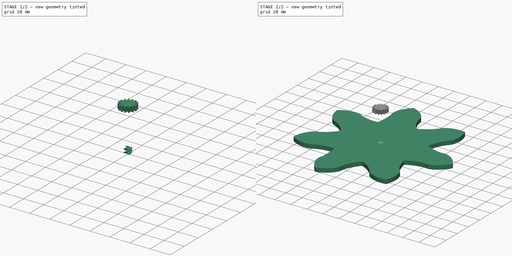
[diagram: build sequence overview — one tinted view per stage of 2, left to right]
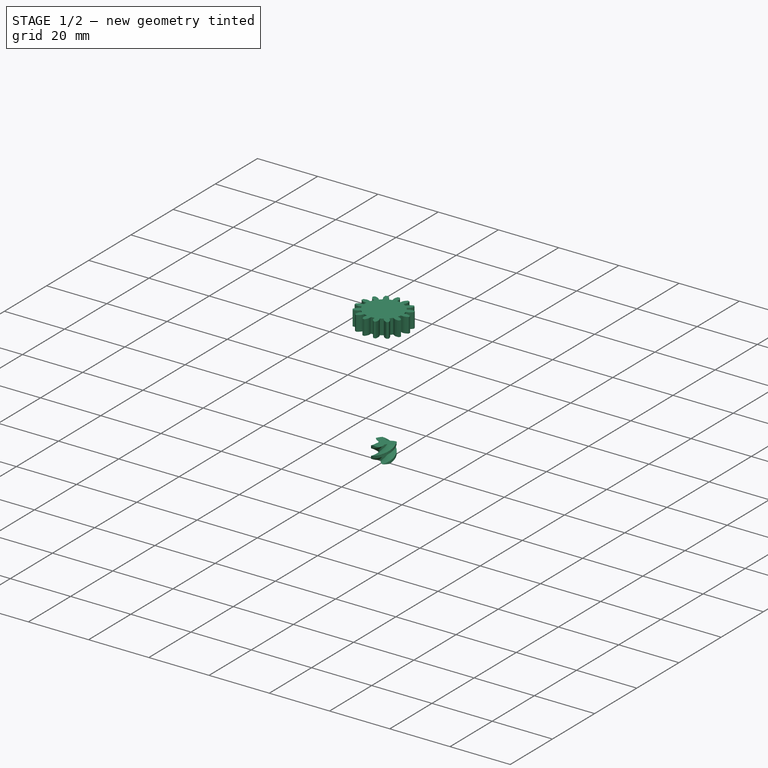
[diagram: stage 1 of 2 — iso view after this stage's code; geometry added in this stage tinted green]
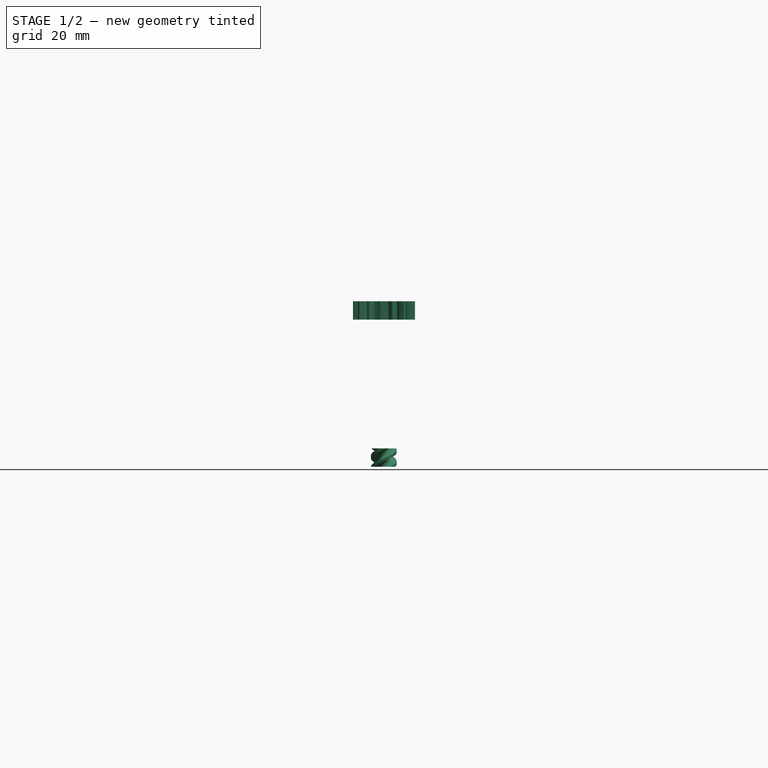
[diagram: stage 1 of 2 — front view after this stage's code; geometry added in this stage tinted green]
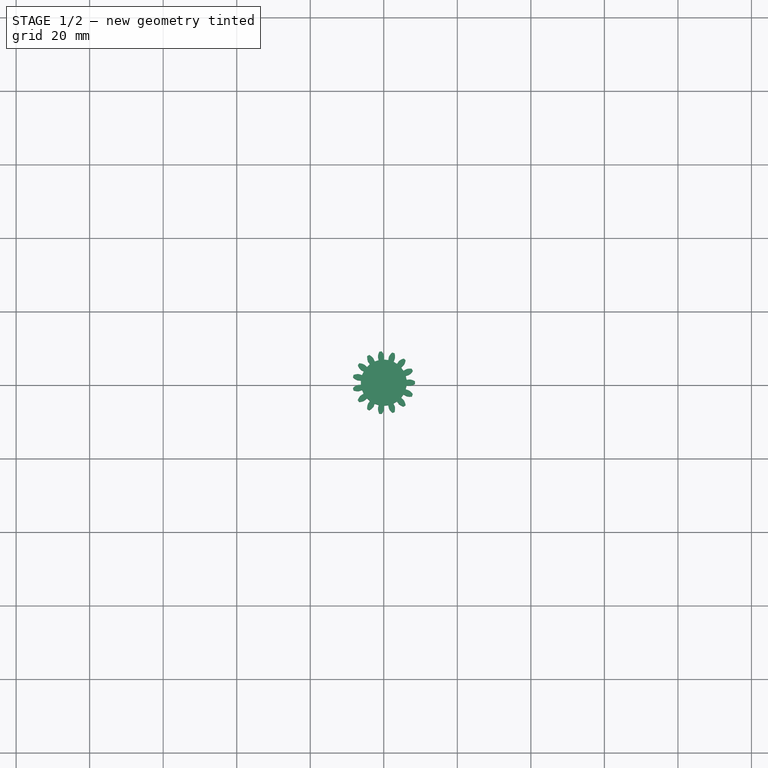
[diagram: stage 1 of 2 — top view after this stage's code; geometry added in this stage tinted green]
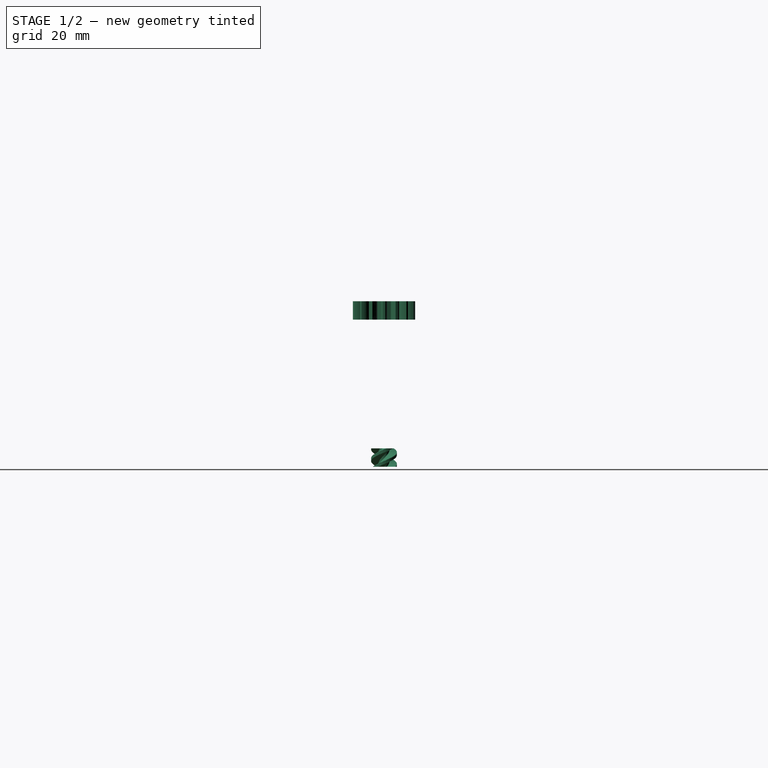
[diagram: stage 1 of 2 — right view after this stage's code; geometry added in this stage tinted green]
FCSTD DOCUMENT  (FreeCAD 0.19R)
Label: cycloid_test
License: All rights reserved
LicenseURL: http://en.wikipedia.org/wiki/All_rights_reserved
objects: Part::FeaturePython×3, Sketcher::SketchObject×2, PartDesign::Body×1
note: 6 computed .brp shape members not serialized (recipe doc carries the construction recipe); baked Part::Feature solids carry a one-line shape summary decoded from their .brp

FEATURE [Part::FeaturePython] InvoluteGear  # WARN: FeaturePython — macro-defined, semantics opaque (R4)
  Placement = pos=(0,0,40) rot=(0,0,1;0rad)
  backlash = 0
  beta = 0
  clearance = 0.25
  double_helix = false
  dw = 15
  head = 0
  height = 5
  module = 1
  numpoints = 6
  pressure_angle = 20
  properties_from_tool = true
  reversed_backlash = false
  shift = 0
  simple = false
  teeth = 15
  undercut = false
FEATURE [Part::FeaturePython] WormGear  # WARN: FeaturePython — macro-defined, semantics opaque (R4)
  beta = 30.9638
  diameter = 5
  height = 5
  module = 1
  pressure_angle = 20
  teeth = 3
FEATURE [Sketcher::SketchObject] Sketch
  MapMode = 5
  Support = -> [XY_Plane]
  sketch-geometry (27):
    g0: Circle [constr] CenterX=0 CenterY=0 CenterZ=0 NormalX=0 NormalY=0 NormalZ=1 AngleXU=0 Radius=40
    g1: LineSegment [constr] StartX=-2 StartY=15 StartZ=0 EndX=-2 EndY=-10 EndZ=0
    g2: Circle [constr] CenterX=40 CenterY=0 CenterZ=0 NormalX=0 NormalY=0 NormalZ=1 AngleXU=0 Radius=5
    g3: Circle [constr] CenterX=30.6418 CenterY=25.7115 CenterZ=0 NormalX=0 NormalY=0 NormalZ=1 AngleXU=0 Radius=5
    g4: Circle [constr] CenterX=6.94593 CenterY=39.3923 CenterZ=0 NormalX=0 NormalY=0 NormalZ=1 AngleXU=0 Radius=5
    g5: Circle [constr] CenterX=-20 CenterY=34.641 CenterZ=0 NormalX=0 NormalY=0 NormalZ=1 AngleXU=0 Radius=5
    g6: Circle [constr] CenterX=-37.5877 CenterY=13.6808 CenterZ=0 NormalX=0 NormalY=0 NormalZ=1 AngleXU=0 Radius=5
    g7: Circle [constr] CenterX=-37.5877 CenterY=-13.6808 CenterZ=0 NormalX=0 NormalY=0 NormalZ=1 AngleXU=0 Radius=5
    g8: Circle [constr] CenterX=-20 CenterY=-34.641 CenterZ=0 NormalX=0 NormalY=0 NormalZ=1 AngleXU=0 Radius=5
    g9: Circle [constr] CenterX=6.94593 CenterY=-39.3923 CenterZ=0 NormalX=0 NormalY=0 NormalZ=1 AngleXU=0 Radius=5
    g10: Circle [constr] CenterX=30.6418 CenterY=-25.7115 CenterZ=0 NormalX=0 NormalY=0 NormalZ=1 AngleXU=0 Radius=5
    g11: LineSegment [constr] StartX=40 StartY=0 StartZ=0 EndX=30.6418 EndY=25.7115 EndZ=0
    g12: LineSegment [constr] StartX=30.6418 StartY=25.7115 StartZ=0 EndX=6.94593 EndY=39.3923 EndZ=0
    g13: LineSegment [constr] StartX=6.94593 StartY=39.3923 StartZ=0 EndX=-20 EndY=34.641 EndZ=0
    g14: LineSegment [constr] StartX=-20 StartY=34.641 StartZ=0 EndX=-37.5877 EndY=13.6808 EndZ=0
    g15: LineSegment [constr] StartX=-37.5877 StartY=13.6808 StartZ=0 EndX=-37.5877 EndY=-13.6808 EndZ=0
    g16: LineSegment [constr] StartX=-37.5877 StartY=-13.6808 StartZ=0 EndX=-20 EndY=-34.641 EndZ=0
    g17: LineSegment [constr] StartX=-20 StartY=-34.641 StartZ=0 EndX=6.94593 EndY=-39.3923 EndZ=0
    g18: LineSegment [constr] StartX=6.94593 StartY=-39.3923 StartZ=0 EndX=30.6418 EndY=-25.7115 EndZ=0
    g19: LineSegment [constr] StartX=30.6418 StartY=-25.7115 StartZ=0 EndX=40 EndY=0 EndZ=0
    g20: Circle [constr] CenterX=0 CenterY=0 CenterZ=0 NormalX=0 NormalY=0 NormalZ=1 AngleXU=0 Radius=36
    g21: Circle [constr] CenterX=22.0294 CenterY=33.3872 CenterZ=0 NormalX=0 NormalY=0 NormalZ=1 AngleXU=0 Radius=4
    g22: LineSegment [constr] StartX=65 StartY=0 StartZ=0 EndX=115 EndY=0 EndZ=0
    g23: GeomPoint X=80 Y=5 Z=0
    g24: GeomPoint X=95 Y=5 Z=0
    g25: LineSegment [constr] StartX=22.0294 StartY=33.3872 StartZ=0 EndX=25.2466 EndY=31.0104 EndZ=0
    g26: LineSegment [constr] StartX=0 StartY=0 StartZ=0 EndX=22.0294 EndY=33.3872 EndZ=0
  constraints (62):
    c: Coincident(g0,g-1)
    c: Vertical(g1)
    c: DistanceX(g1,g-1) = 2
    c: Diameter(g0) = 80
    c: PointOnObject(g2,g0)
    c: Diameter(g2) = 10
    c: Equal(g2,g3) = 10
    c: PointOnObject(g3,g0)
    c: Equal(g2,g4) = 10
    c: PointOnObject(g4,g0)
    c: Equal(g2,g5) = 10
    c: PointOnObject(g5,g0)
    c: Equal(g2,g6) = 10
    c: PointOnObject(g6,g0)
    c: Equal(g2,g7) = 10
    c: PointOnObject(g7,g0)
    c: Equal(g2,g8) = 10
    c: PointOnObject(g8,g0)
    c: Equal(g2,g9) = 10
    c: PointOnObject(g9,g0)
    c: Equal(g2,g10) = 10
    c: PointOnObject(g10,g0)
    c: Coincident(g11,g2)
    c: Coincident(g11,g3)
    c: Coincident(g12,g3)
    c: Coincident(g12,g4)
    c: Equal(g11,g12)
    c: Coincident(g13,g4)
    c: Coincident(g13,g5)
    c: Coincident(g14,g5)
    c: Coincident(g14,g6)
    c: Coincident(g15,g6)
    c: Coincident(g15,g7)
    c: Coincident(g16,g7)
    c: Coincident(g16,g8)
    c: Coincident(g17,g8)
    c: Coincident(g17,g9)
    c: Coincident(g18,g10)
    c: Coincident(g19,g2)
    c: PointOnObject(g2,g-1)
    c: Equal(g11,g13)
    c: Equal(g13,g14)
    c: Equal(g11,g16)
    c: Equal(g16,g17)
    c: Equal(g17,g18)
    c: Equal(g18,g19)
    c: Coincident(g18,g9)
    c: Coincident(g10,g19)
    c: Equal(g15,g19)
    c: Coincident(g20,g-1)
    c: Radius(g20) = 36
    c: PointOnObject(g21,g0)
    c: Tangent(g21,g20)
    c: PointOnObject(g21,g-1)
    c: PointOnObject(g22,g-1)
    c: PointOnObject(g22,g-1)
    c: DistanceY(g22,g23) = 5
    c: Coincident(g25,g21)
    c: PointOnObject(g25,g21)
    c: Coincident(g26,g-1)
    c: Coincident(g26,g21)
    c: Angle(g-1,g26) = 0.987552
FEATURE [Sketcher::SketchObject] Sketch001
  MapMode = 5
  Support = -> [XY_Plane]
  expr: Constraints[13] = .Constraints.phi * .Constraints.d1 / .Constraints.d2 % 360
  sketch-geometry (9):
    g0: Circle [constr] CenterX=0 CenterY=0 CenterZ=0 NormalX=0 NormalY=0 NormalZ=1 AngleXU=0 Radius=50
    g1: Circle [constr] CenterX=31.3287 CenterY=51.1714 CenterZ=0 NormalX=0 NormalY=0 NormalZ=1 AngleXU=0 Radius=10
    g2: LineSegment [constr] StartX=0 StartY=0 StartZ=0 EndX=31.3287 EndY=51.1714 EndZ=0
    g3: LineSegment [constr] StartX=31.3287 StartY=51.1714 StartZ=0 EndX=37.7456 EndY=43.5018 EndZ=0
    g4: LineSegment [constr] StartX=0 StartY=0 StartZ=0 EndX=0 EndY=0.00573161 EndZ=0
    g5: LineSegment [constr] StartX=0 StartY=0 StartZ=0 EndX=37.7456 EndY=43.5018 EndZ=0
    g6: GeomPoint X=32.6121 Y=49.6375 Z=0
    g7: GeomPoint X=57.5564 Y=11.7045 Z=0
    g8: GeomPoint X=57.9829 Y=2.37232 Z=0
  constraints (16):
    c: Coincident(g0,g-1)
    c: Tangent(g1,g0)
    c: Diameter(g0) = 100  'd1'
    c: Diameter(g1) = 20  'd2'
    c: Coincident(g2,g-1)
    c: Coincident(g2,g1)
    c: Coincident(g3,g1)
    c: PointOnObject(g3,g1)
    c: Angle(g-1,g2) = 1.02143  'phi'
    c: Coincident(g4,g-1)
    c: Vertical(g4)
    c: Coincident(g5,g-1)
    c: Coincident(g5,g3)
    c: Angle(g3,g2) = 5.03712
    c: PointOnObject(g6,g3)
    c: Distance(g6,g1) = 2
FEATURE [PartDesign::Body] Body
  Group = -> [Sketch,Sketch001]
  Origin = -> Origin
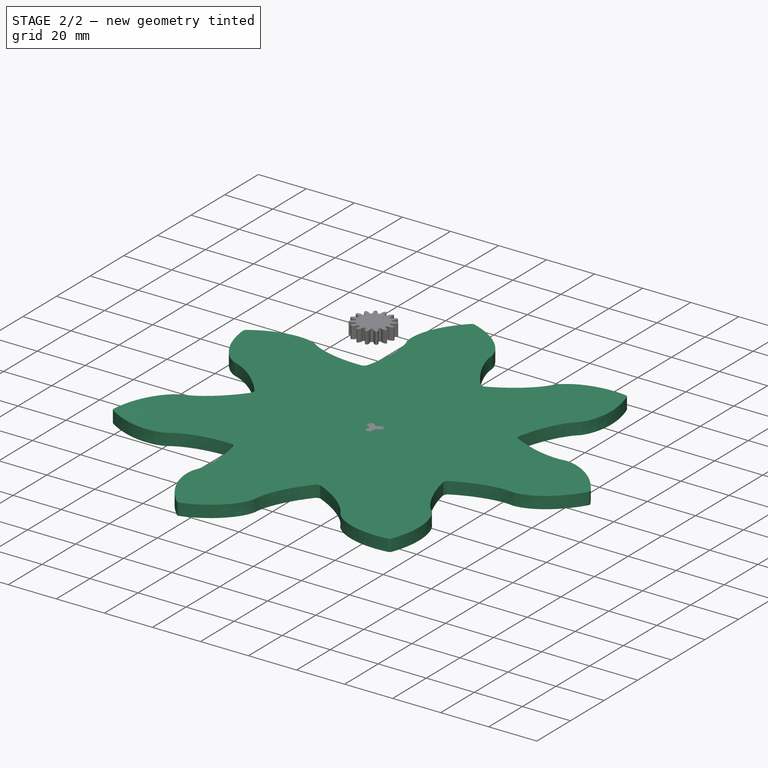
[diagram: stage 2 of 2 — iso view after this stage's code; geometry added in this stage tinted green]
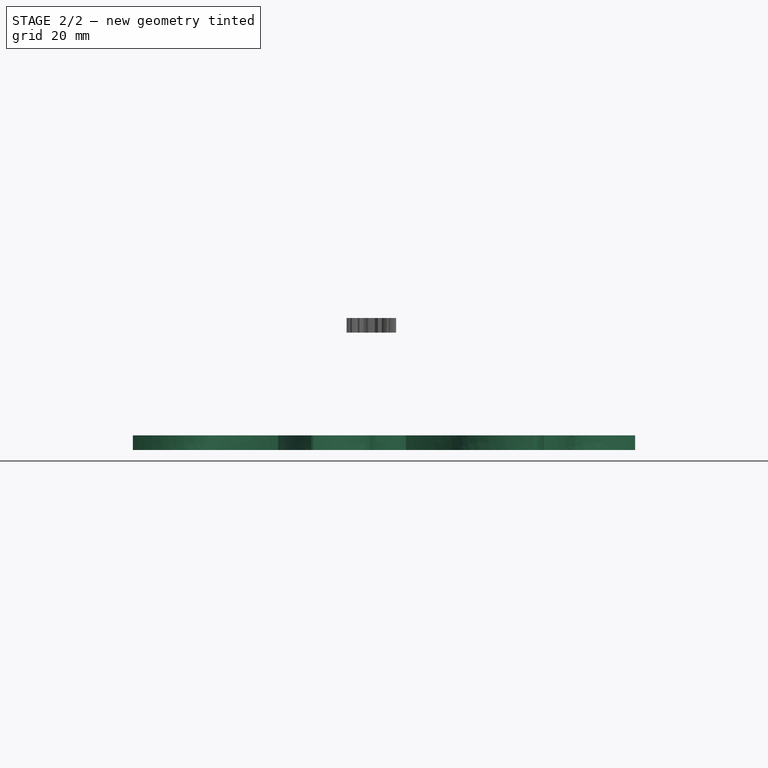
[diagram: stage 2 of 2 — front view after this stage's code; geometry added in this stage tinted green]
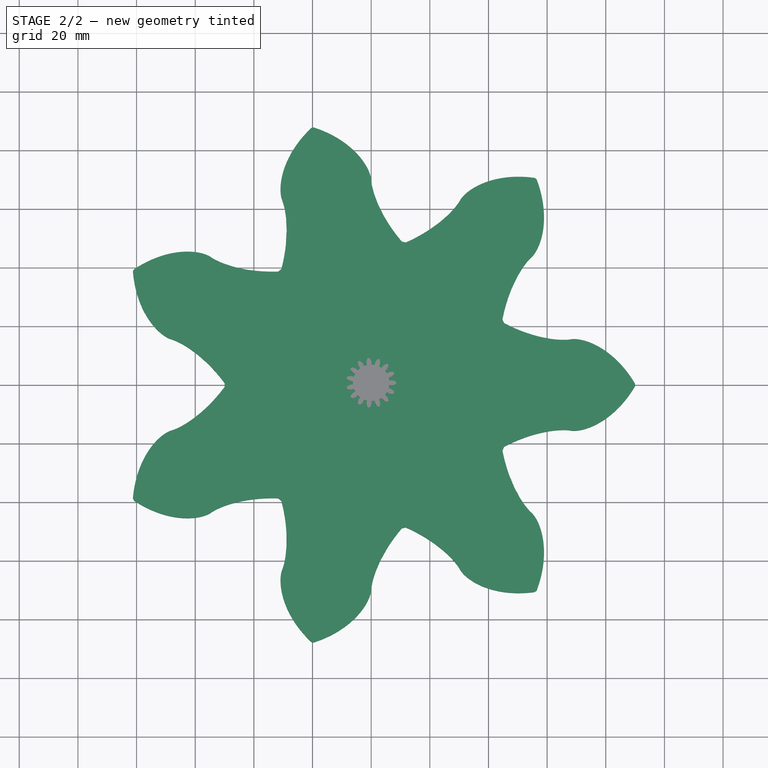
[diagram: stage 2 of 2 — top view after this stage's code; geometry added in this stage tinted green]
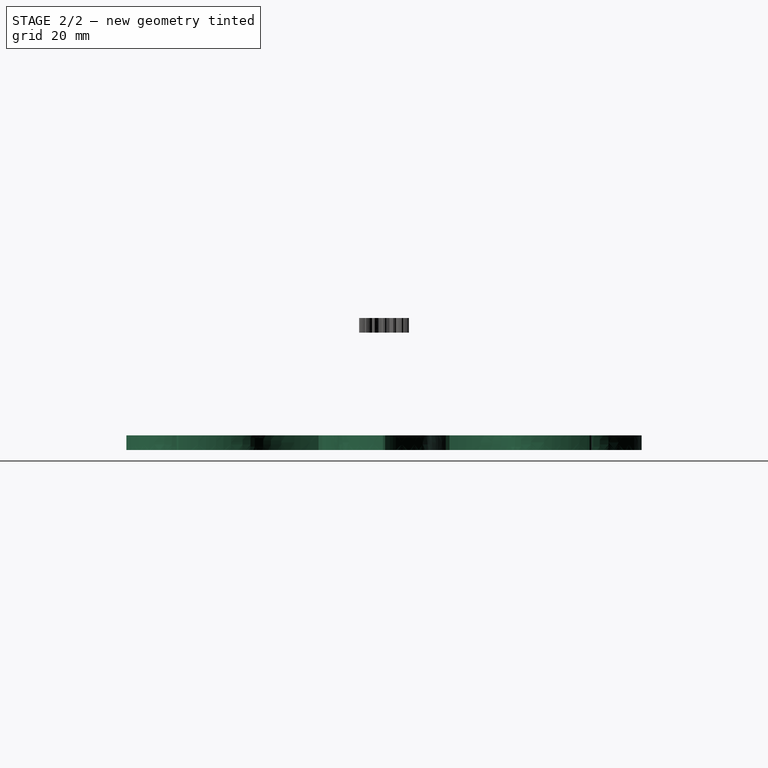
[diagram: stage 2 of 2 — right view after this stage's code; geometry added in this stage tinted green]
FEATURE [Part::FeaturePython] CycloidGear  # WARN: FeaturePython — macro-defined, semantics opaque (R4)
  backlash = 0
  beta = 0
  clearance = 0
  double_helix = false
  height = 5
  inner_diameter = 1.3
  module = 20
  numpoints = 15
  outer_diameter = 1.6
  teeth = 7
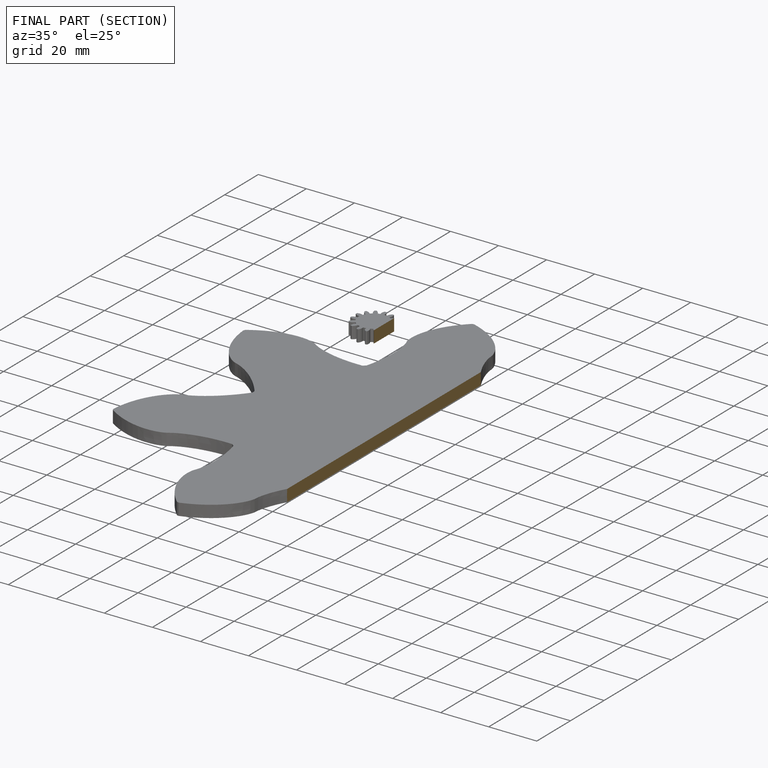
[diagram: finished part — half-section view (interior)]
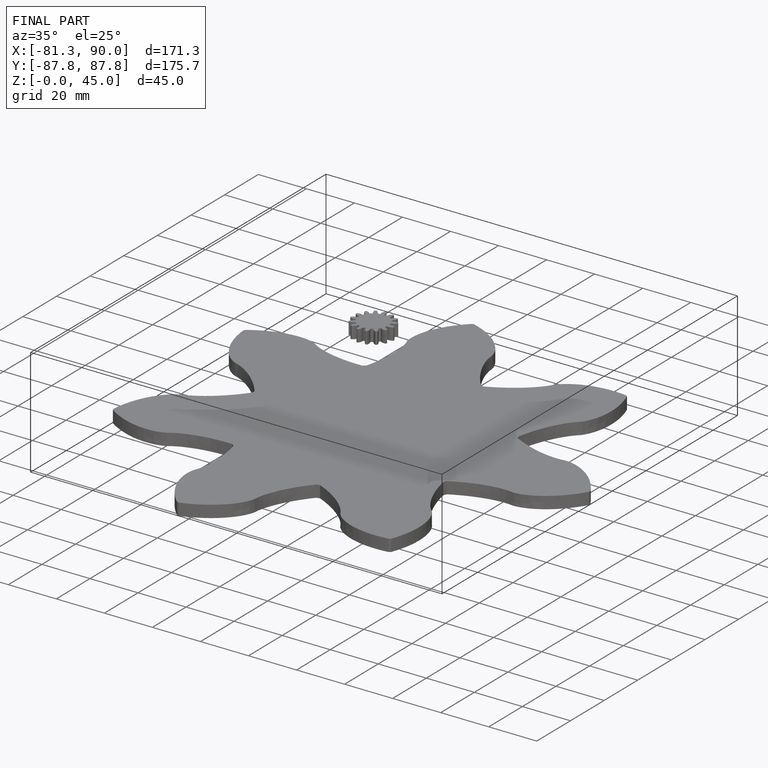
[diagram: finished part — iso view with bounding-box wireframe]
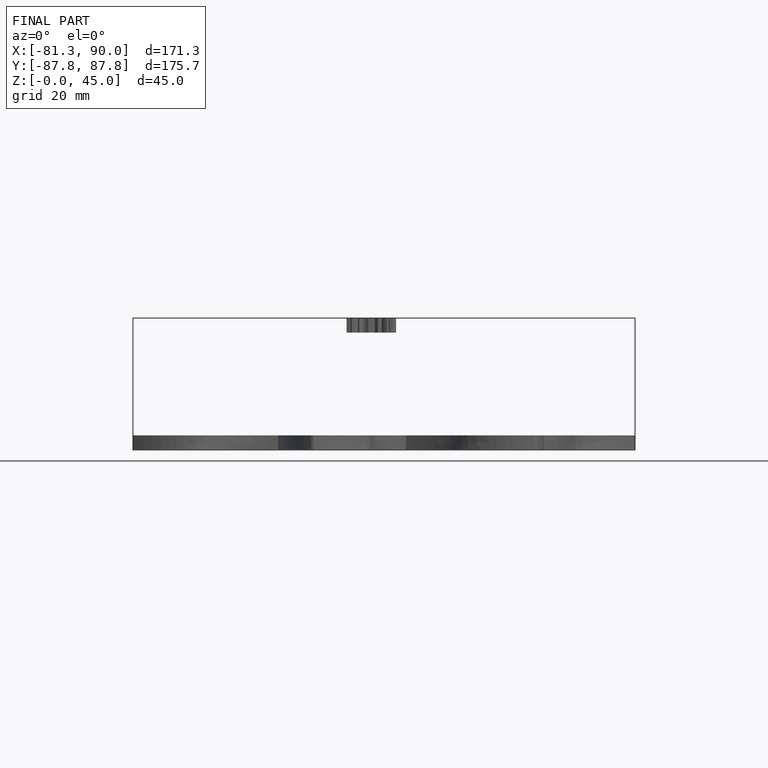
[diagram: finished part — front view with bounding-box wireframe]
